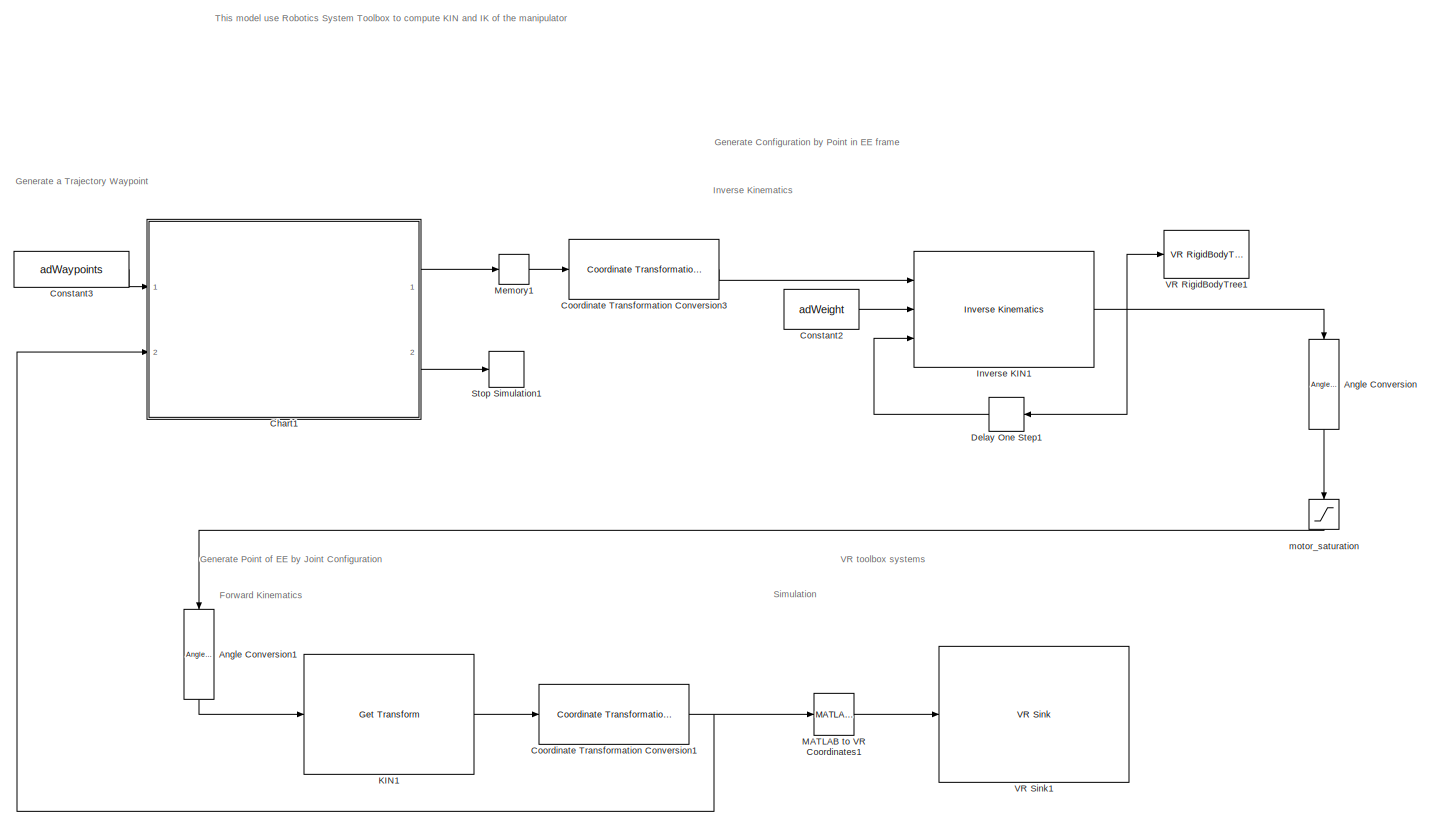
[diagram: root canvas - part 1/1, most of the canvas]
MODEL slx_f94a16ea3b5e
KIND model
CONFIG AbsTol = auto
CONFIG EnableMultiTasking = off
CONFIG FixedStep = auto
CONFIG MaxStep = auto
CONFIG MinStep = auto
CONFIG RelTol = 1e-3
CONFIG SampleTimeConstraint = Unconstrained
CONFIG SolverName = VariableStepAuto
CONFIG StartTime = 0.0
CONFIG StopTime = inf
BLOCK [Reference] Angle Conversion  REF=aerolibconvert2/Angle Conversion
  NameLocation = left
  Ports = [1, 1]
  SourceBlock = aerolibconvert2/Angle Conversion
  SourceProductBaseCode = AE
  SourceType = Angle Conversion
BLOCK [Reference] Angle Conversion1  REF=aerolibconvert2/Angle Conversion
  NameLocation = left
  Ports = [1, 1]
  SourceBlock = aerolibconvert2/Angle Conversion
  SourceProductBaseCode = AE
  SourceType = Angle Conversion
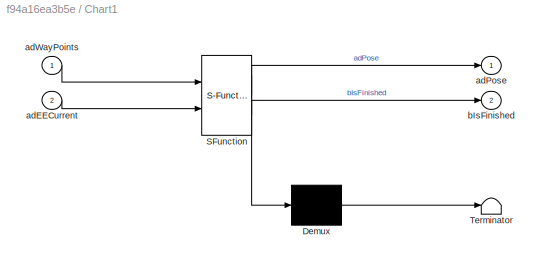
BLOCK [SubSystem] Chart1
  ErrorFcn = Stateflow.Translate.translate
  PermitHierarchicalResolution = ExplicitOnly
  Ports = [2, 2]
  RequestExecContextInheritance = off
  SFBlockType = Chart
  TreatAsAtomicUnit = on
BLOCK [Demux] Chart1/ Demux 
  Outputs = 1
  Ports = [1, 1]
BLOCK [S-Function] Chart1/ SFunction 
  EnableBusSupport = on
  FunctionName = sf_sfun
  PortCounts = [2 3]
  Ports = [2, 3]
  SFcnIsStateOwnerBlock = off
  SFunctionDeploymentMode = off
  Tag = Stateflow S-Function 1
BLOCK [Terminator] Chart1/ Terminator 
BLOCK [Inport] Chart1/adEECurrent
  Port = 2
BLOCK [Outport] Chart1/adPose
BLOCK [Inport] Chart1/adWayPoints
BLOCK [Outport] Chart1/bIsFinished
  Port = 2
BLOCK [Constant] Constant2
  Value = adWeight
BLOCK [Constant] Constant3
  Value = adWaypoints
BLOCK [Reference] Coordinate Transformation Conversion1  REF=robotcorelib/Coordinate Transformation Conversion
  Ports = [1, 1]
  SourceBlock = robotcorelib/Coordinate Transformation Conversion
  SourceProductBaseCode = NV,RO,RR,UV
  SourceType = robotics.slcore.internal.block.CoordinateTransformationConversion
BLOCK [Reference] Coordinate Transformation Conversion3  REF=robotcorelib/Coordinate Transformation Conversion
  Ports = [1, 1]
  SourceBlock = robotcorelib/Coordinate Transformation Conversion
  SourceProductBaseCode = NV,RO,RR,UV
  SourceType = robotics.slcore.internal.block.CoordinateTransformationConversion
BLOCK [Delay] Delay One Step1
  DelayLength = 1
  InitialCondition = adHomeConfig
  InputPortMap = u0
  NameLocation = top
  Ports = [1, 1]
BLOCK [Reference] Inverse KIN1  REF=robotmaniplib/Inverse Kinematics
  Ports = [3, 1]
  SourceBlock = robotmaniplib/Inverse Kinematics
  SourceProductBaseCode = RO
  SourceType = Inverse Kinematics
BLOCK [Reference] KIN1  REF=robotmaniplib/Get Transform
  Ports = [1, 1]
  SourceBlock = robotmaniplib/Get Transform
  SourceProductBaseCode = RO
  SourceType = Get Transform
BLOCK [Reference] MATLAB to VR Coordinates1  REF=vrlib/Utilities/MATLAB to
VR Coordinates
  Ports = [1, 1]
  SourceBlock = vrlib/Utilities/MATLAB to\nVR Coordinates
  SourceProductBaseCode = SL
  SourceType = MATLAB to VR Coordinates
BLOCK [Memory] Memory1
BLOCK [Stop] Stop Simulation1
BLOCK [Reference] VR RigidBodyTree1  REF=vrlib/VR RigidBodyTree
  Ports = [1]
  SourceBlock = vrlib/VR RigidBodyTree
  SourceProductBaseCode = SL
  SourceType = VR RigidBodyTree
BLOCK [Reference] VR Sink1  REF=vrlib/VR Sink
  InstantiateOnLoad = on
  Ports = [1]
  SourceBlock = vrlib/VR Sink
  SourceProductBaseCode = SL
  SourceType = Virtual Reality Sink
BLOCK [Saturate] motor_saturation
  LowerLimit = adMotorLimits(:,1)
  NameLocation = left
  UpperLimit = adMotorLimits(:,2)
ANNOTATION (root): This model use Robotics System Toolbox to compute KIN and IK of the manipulator
ANNOTATION (root): Generate a Trajectory Waypoint
ANNOTATION (root): VR toolbox systems
ANNOTATION (root): Generate Configuration by Point in EE frame
ANNOTATION (root): Generate Point of EE by Joint Configuration
ANNOTATION (root): Forward Kinematics
ANNOTATION (root): Inverse Kinematics
ANNOTATION (root): Simulation
LINE Angle Conversion1:1 -> KIN1:1
LINE Angle Conversion:1 -> motor_saturation:1
LINE Chart1:1 -> Memory1:1
LINE Chart1:2 -> Stop Simulation1:1
LINE Constant2:1 -> Inverse KIN1:2
LINE Constant3:1 -> Chart1:1
NET Coordinate Transformation Conversion1:1 -> Chart1:2, MATLAB to VR Coordinates1:1
LINE Coordinate Transformation Conversion3:1 -> Inverse KIN1:1
LINE Delay One Step1:1 -> Inverse KIN1:3
NET Inverse KIN1:1 -> Angle Conversion:1, Delay One Step1:1, VR RigidBodyTree1:1
LINE KIN1:1 -> Coordinate Transformation Conversion1:1
LINE MATLAB to VR Coordinates1:1 -> VR Sink1:1
LINE Memory1:1 -> Coordinate Transformation Conversion3:1
LINE motor_saturation:1 -> Angle Conversion1:1
note: NET lines group one-source signal fan-out (src -> all destinations, sorted); 1:1 wires keep LINE
CHART Chart1 states=0 transitions=9
CHART  states=0 transitions=0
